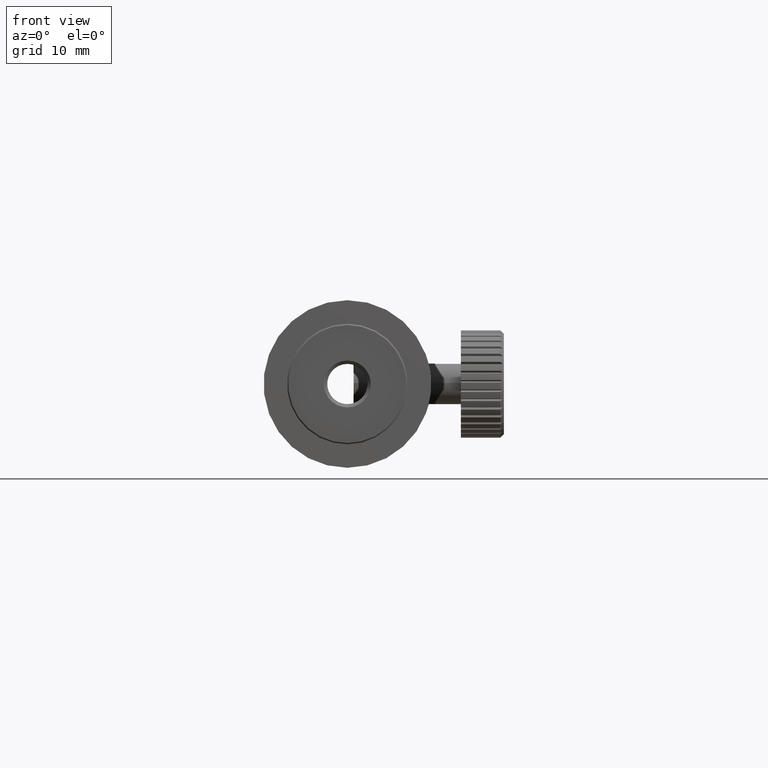
[diagram: clean part render]
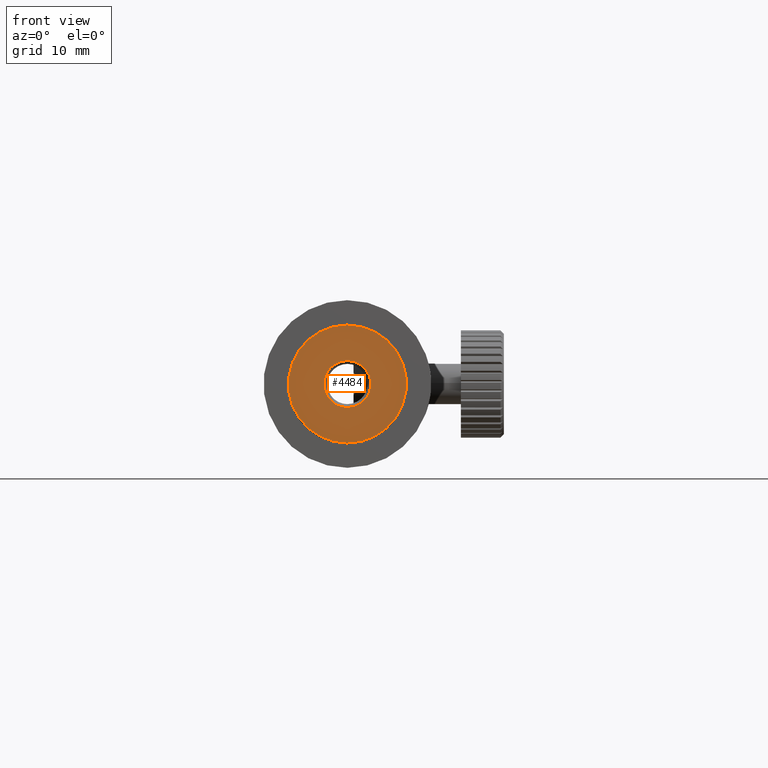
[diagram: same view with one face highlighted and labeled with its STEP entity id]
A machine part, front view. The second image highlights one B-rep face of the part: STEP entity #4484.
In plain terms, the highlighted planar face has unit normal (0, 1, 0).
Its self-contained STEP definition (entity closure, byte-faithful):
#36 = CIRCLE ( 'NONE', #7709, 3.499999999999999556 ) ;
#231 = CARTESIAN_POINT ( 'NONE',  ( -3.204778668925411633, -11.81361205960983796, -8.799999999999995381 ) ) ;
#310 = ORIENTED_EDGE ( 'NONE', *, *, #5837, .T. ) ;
#616 = VERTEX_POINT ( 'NONE', #1957 ) ;
#1011 = EDGE_LOOP ( 'NONE', ( #310, #7422 ) ) ;
#1121 = DIRECTION ( 'NONE',  ( 0.0000000000000000000, 0.0000000000000000000, 1.000000000000000000 ) ) ;
#1585 = DIRECTION ( 'NONE',  ( 0.0000000000000000000, 0.0000000000000000000, 1.000000000000000000 ) ) ;
#1618 = EDGE_CURVE ( 'NONE', #616, #3573, #8381, .T. ) ;
#1732 = VERTEX_POINT ( 'NONE', #6988 ) ;
#1815 = CIRCLE ( 'NONE', #4474, 3.499999999999999556 ) ;
#1860 = CARTESIAN_POINT ( 'NONE',  ( -3.204778668925412966, -11.81361205960983796, 0.0000000000000000000 ) ) ;
#1957 = CARTESIAN_POINT ( 'NONE',  ( -3.204778668925412966, -11.81361205960983796, 8.799999999999995381 ) ) ;
#2494 = DIRECTION ( 'NONE',  ( -0.0000000000000000000, -1.000000000000000000, -0.0000000000000000000 ) ) ;
#2604 = DIRECTION ( 'NONE',  ( 0.0000000000000000000, 0.0000000000000000000, 1.000000000000000000 ) ) ;
#2636 = DIRECTION ( 'NONE',  ( 0.0000000000000000000, -0.0000000000000000000, 1.000000000000000000 ) ) ;
#2681 = PLANE ( 'NONE',  #7998 ) ;
#2830 = DIRECTION ( 'NONE',  ( -0.0000000000000000000, -1.000000000000000000, -0.0000000000000000000 ) ) ;
#3158 = ORIENTED_EDGE ( 'NONE', *, *, #8186, .T. ) ;
#3208 = DIRECTION ( 'NONE',  ( 0.0000000000000000000, 1.000000000000000000, 0.0000000000000000000 ) ) ;
#3293 = VERTEX_POINT ( 'NONE', #4479 ) ;
#3329 = FACE_OUTER_BOUND ( 'NONE', #5513, .T. ) ;
#3573 = VERTEX_POINT ( 'NONE', #231 ) ;
#3795 = AXIS2_PLACEMENT_3D ( 'NONE', #7870, #2830, #5096 ) ;
#4287 = ORIENTED_EDGE ( 'NONE', *, *, #1618, .T. ) ;
#4474 = AXIS2_PLACEMENT_3D ( 'NONE', #6124, #3208, #2604 ) ;
#4479 = CARTESIAN_POINT ( 'NONE',  ( -3.204778668925412966, -11.81361205960983796, -3.499999999999999556 ) ) ;
#4484 = ADVANCED_FACE ( 'NONE', ( #4768, #3329 ), #2681, .F. ) ;
#4768 = FACE_BOUND ( 'NONE', #1011, .T. ) ;
#4788 = EDGE_CURVE ( 'NONE', #1732, #3293, #36, .T. ) ;
#5096 = DIRECTION ( 'NONE',  ( 0.0000000000000000000, 0.0000000000000000000, 1.000000000000000000 ) ) ;
#5249 = CIRCLE ( 'NONE', #3795, 8.799999999999995381 ) ;
#5269 = DIRECTION ( 'NONE',  ( 0.0000000000000000000, 1.000000000000000000, 0.0000000000000000000 ) ) ;
#5413 = AXIS2_PLACEMENT_3D ( 'NONE', #1860, #2494, #1121 ) ;
#5513 = EDGE_LOOP ( 'NONE', ( #4287, #3158 ) ) ;
#5837 = EDGE_CURVE ( 'NONE', #3293, #1732, #1815, .T. ) ;
#6124 = CARTESIAN_POINT ( 'NONE',  ( -3.204778668925412966, -11.81361205960983796, 0.0000000000000000000 ) ) ;
#6519 = CARTESIAN_POINT ( 'NONE',  ( -3.204778668925412966, -11.81361205960983796, 0.0000000000000000000 ) ) ;
#6988 = CARTESIAN_POINT ( 'NONE',  ( -3.204778668925412521, -11.81361205960983796, 3.499999999999999556 ) ) ;
#7422 = ORIENTED_EDGE ( 'NONE', *, *, #4788, .T. ) ;
#7709 = AXIS2_PLACEMENT_3D ( 'NONE', #6519, #5269, #1585 ) ;
#7870 = CARTESIAN_POINT ( 'NONE',  ( -3.204778668925412966, -11.81361205960983796, 0.0000000000000000000 ) ) ;
#7998 = AXIS2_PLACEMENT_3D ( 'NONE', #8243, #8336, #2636 ) ;
#8186 = EDGE_CURVE ( 'NONE', #3573, #616, #5249, .T. ) ;
#8243 = CARTESIAN_POINT ( 'NONE',  ( -3.204778668925412966, -11.81361205960983796, 0.0000000000000000000 ) ) ;
#8336 = DIRECTION ( 'NONE',  ( 0.0000000000000000000, 1.000000000000000000, 0.0000000000000000000 ) ) ;
#8381 = CIRCLE ( 'NONE', #5413, 8.799999999999995381 ) ;